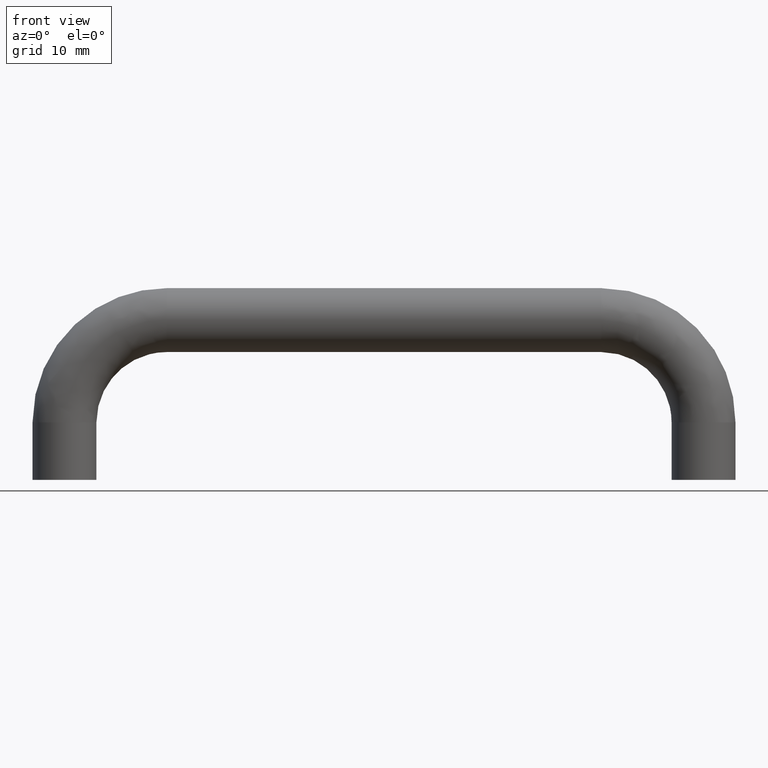
[diagram: clean part render]
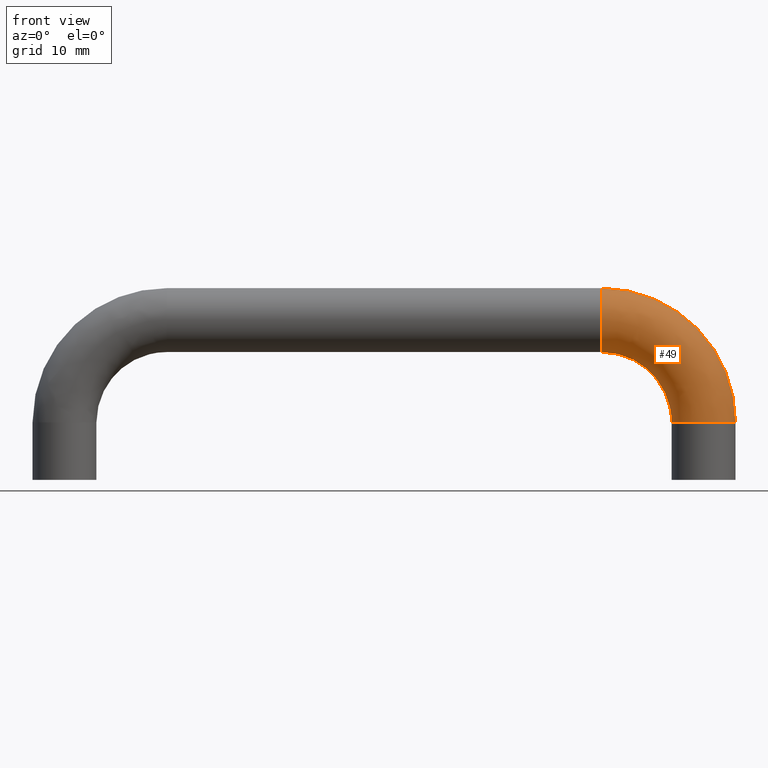
[diagram: same view with one face highlighted and labeled with its STEP entity id]
A machine part, front view. The second image highlights one B-rep face of the part: STEP entity #49.
In plain terms, the highlighted face is a freeform B-spline surface patch.
Its self-contained STEP definition (entity closure, byte-faithful):
#49=ADVANCED_FACE('',(#151),#150,.T.);
#150=( BOUNDED_SURFACE() B_SPLINE_SURFACE( 2,2,((#360,#361,#362,#363,#364,#365,#366),(#367,#368,#369,#370,#371,#372,#373),(#374,#375,#376,#377,#378,#379,#380),(#381,#382,#383,#384,#385,#386,#387),(#388,#389,#390,#391,#392,#393,#394)), .UNSPECIFIED.,.F.,.F.,.F.) B_SPLINE_SURFACE_WITH_KNOTS((3,2,3),(3,2,2,3),(0.00000000000E+00,1.57079632679E+00,3.14159265359E+00),(1.56981901998E+00,1.57079632679E+00,3.14159265359E+00,3.14256996040E+00), .UNSPECIFIED. ) GEOMETRIC_REPRESENTATION_ITEM() RATIONAL_B_SPLINE_SURFACE(((9.99635766346E-01,9.99817769794E-01,1.00000000000E+00,7.07106781187E-01,1.00000000000E+00,9.99817769794E-01,9.99635766346E-01),(7.06849229100E-01,7.06977924972E-01,7.07106781187E-01,5.00000000000E-01,7.07106781187E-01,7.06977924972E-01,7.06849229100E-01),(9.99635766346E-01,9.99817769794E-01,1.00000000000E+00,7.07106781187E-01,1.00000000000E+00,9.99817769794E-01,9.99635766346E-01),(7.06849229100E-01,7.06977924972E-01,7.07106781187E-01,5.00000000000E-01,7.07106781187E-01,7.06977924972E-01,7.06849229100E-01),(9.99635766346E-01,9.99817769794E-01,1.00000000000E+00,7.07106781187E-01,1.00000000000E+00,9.99817769794E-01,9.99635766346E-01))) REPRESENTATION_ITEM('') SURFACE() );
#151=FACE_OUTER_BOUND('',#395,.T.);
#360=CARTESIAN_POINT('',(3.39815190452E+01,-9.33774350974E-11,9.99999186788E+00));
#361=CARTESIAN_POINT('',(3.39907595209E+01,-9.33774350974E-11,9.99999999992E+00));
#362=CARTESIAN_POINT('',(3.40000000001E+01,-9.33774350974E-11,9.99999999992E+00));
#363=CARTESIAN_POINT('',(5.50000000000E+01,-9.33774350974E-11,9.99999999992E+00));
#364=CARTESIAN_POINT('',(5.50000000000E+01,-9.33774350974E-11,-1.10000000000E+01));
#365=CARTESIAN_POINT('',(5.50000000000E+01,-9.33774350974E-11,-1.10092404792E+01));
#366=CARTESIAN_POINT('',(5.49999918680E+01,-9.33774350974E-11,-1.10184809549E+01));
#367=CARTESIAN_POINT('',(3.39815190452E+01,-5.00000000009E+00,9.99999186788E+00));
#368=CARTESIAN_POINT('',(3.39907595209E+01,-5.00000000009E+00,9.99999999992E+00));
#369=CARTESIAN_POINT('',(3.40000000001E+01,-5.00000000009E+00,9.99999999992E+00));
#370=CARTESIAN_POINT('',(5.50000000000E+01,-5.00000000009E+00,9.99999999992E+00));
#371=CARTESIAN_POINT('',(5.50000000000E+01,-5.00000000009E+00,-1.10000000000E+01));
#372=CARTESIAN_POINT('',(5.50000000000E+01,-5.00000000009E+00,-1.10092404792E+01));
#373=CARTESIAN_POINT('',(5.49999918680E+01,-5.00000000009E+00,-1.10184809549E+01));
#374=CARTESIAN_POINT('',(3.39859192726E+01,-5.00000000009E+00,4.99999380408E+00));
#375=CARTESIAN_POINT('',(3.39929596350E+01,-5.00000000009E+00,4.99999999992E+00));
#376=CARTESIAN_POINT('',(3.40000000001E+01,-5.00000000009E+00,4.99999999992E+00));
#377=CARTESIAN_POINT('',(5.00000000000E+01,-5.00000000009E+00,4.99999999992E+00));
#378=CARTESIAN_POINT('',(5.00000000000E+01,-5.00000000009E+00,-1.10000000000E+01));
#379=CARTESIAN_POINT('',(5.00000000000E+01,-5.00000000009E+00,-1.10070403651E+01));
#380=CARTESIAN_POINT('',(4.99999938042E+01,-5.00000000009E+00,-1.10140807275E+01));
#381=CARTESIAN_POINT('',(3.39903194999E+01,-5.00000000009E+00,-4.25972035266E-06));
#382=CARTESIAN_POINT('',(3.39951597491E+01,-5.00000000009E+00,-7.93711755164E-11));
#383=CARTESIAN_POINT('',(3.40000000001E+01,-5.00000000009E+00,-7.93711762981E-11));
#384=CARTESIAN_POINT('',(4.50000000000E+01,-5.00000000009E+00,-7.93729526549E-11));
#385=CARTESIAN_POINT('',(4.50000000000E+01,-5.00000000009E+00,-1.10000000000E+01));
#386=CARTESIAN_POINT('',(4.50000000000E+01,-5.00000000009E+00,-1.10048402510E+01));
#387=CARTESIAN_POINT('',(4.49999957404E+01,-5.00000000009E+00,-1.10096805002E+01));
#388=CARTESIAN_POINT('',(3.39903194999E+01,-9.33780474005E-11,-4.25972035266E-06));
#389=CARTESIAN_POINT('',(3.39951597491E+01,-9.33780474005E-11,-7.93711755164E-11));
#390=CARTESIAN_POINT('',(3.40000000001E+01,-9.33780474005E-11,-7.93711762981E-11));
#391=CARTESIAN_POINT('',(4.50000000000E+01,-9.33780474005E-11,-7.93729526549E-11));
#392=CARTESIAN_POINT('',(4.50000000000E+01,-9.33780474005E-11,-1.10000000000E+01));
#393=CARTESIAN_POINT('',(4.50000000000E+01,-9.33780474005E-11,-1.10048402510E+01));
#394=CARTESIAN_POINT('',(4.49999957404E+01,-9.33780474005E-11,-1.10096805002E+01));
#395=EDGE_LOOP('',(#468,#469,#470,#471));
#468=ORIENTED_EDGE('',*,*,#525,.T.);
#469=ORIENTED_EDGE('',*,*,#527,.T.);
#470=ORIENTED_EDGE('',*,*,#529,.T.);
#471=ORIENTED_EDGE('',*,*,#528,.F.);
#525=EDGE_CURVE('',#663,#662,#682,.T.);
#527=EDGE_CURVE('',#662,#689,#696,.T.);
#528=EDGE_CURVE('',#663,#688,#702,.T.);
#529=EDGE_CURVE('',#689,#688,#708,.T.);
#662=VERTEX_POINT('',#852);
#663=VERTEX_POINT('',#853);
#682=CIRCLE('',#865,5.00000000000E+00);
#688=VERTEX_POINT('',#866);
#689=VERTEX_POINT('',#867);
#696=(BOUNDED_CURVE() B_SPLINE_CURVE(2,(#872,#873,#874),.UNSPECIFIED.,.F.,.F.) B_SPLINE_CURVE_WITH_KNOTS((3,3),(1.57079632679E+00,3.14159265359E+00),.UNSPECIFIED.) CURVE() GEOMETRIC_REPRESENTATION_ITEM() RATIONAL_B_SPLINE_CURVE((1.00000000000E+00,7.07106781187E-01,1.00000000000E+00)) REPRESENTATION_ITEM('') );
#702=(BOUNDED_CURVE() B_SPLINE_CURVE(3,(#875,#876,#877,#878,#879,#880,#881,#882,#883),.UNSPECIFIED.,.F.,.F.) B_SPLINE_CURVE_WITH_KNOTS((4,1,1,1,1,1,4),(1.57079632680E+00,1.84807220328E+00,2.07912984810E+00,2.35619449020E+00,2.63325913230E+00,2.86431677711E+00,3.14159265360E+00),.UNSPECIFIED.) CURVE() GEOMETRIC_REPRESENTATION_ITEM() RATIONAL_B_SPLINE_CURVE((1.00000000000E+00,1.00000000000E+00,1.00000000000E+00,1.00000000000E+00,1.00000000000E+00,1.00000000000E+00,1.00000000000E+00,1.00000000000E+00,1.00000000000E+00)) REPRESENTATION_ITEM('') );
#708=CIRCLE('',#887,5.00000000000E+00);
#852=CARTESIAN_POINT('',(3.40000000000E+01,-9.33376078430E-11,2.43592450410E-32));
#853=CARTESIAN_POINT('',(3.40000000000E+01,-9.33368937694E-11,1.00000000000E+01));
#862=CARTESIAN_POINT('',(3.40000000000E+01,-9.33367966249E-11,5.00000000000E+00));
#863=DIRECTION('',(1.00000000000E+00,0.00000000000E+00,-0.00000000000E+00));
#864=DIRECTION('',(-0.00000000000E+00,-3.97829799999E-17,-1.00000000000E+00));
#865=AXIS2_PLACEMENT_3D('',#862,#863,#864);
#866=CARTESIAN_POINT('',(5.50000000000E+01,-9.33376078430E-11,-1.10000000000E+01));
#867=CARTESIAN_POINT('',(4.50000000000E+01,-9.33368937694E-11,-1.10000000000E+01));
#872=CARTESIAN_POINT('',(3.40000000001E+01,-9.33768227942E-11,-7.93711762981E-11));
#873=CARTESIAN_POINT('',(4.50000000000E+01,-9.33768227942E-11,-7.93729526549E-11));
#874=CARTESIAN_POINT('',(4.50000000000E+01,-9.33768227942E-11,-1.10000000000E+01));
#875=CARTESIAN_POINT('',(3.40000000001E+01,-9.33774350974E-11,9.99999999992E+00));
#876=CARTESIAN_POINT('',(3.59365056684E+01,-9.33774350974E-11,1.00006883910E+01));
#877=CARTESIAN_POINT('',(3.94921764616E+01,-9.33774350974E-11,9.50466741294E+00));
#878=CARTESIAN_POINT('',(4.46060632110E+01,-9.33774350974E-11,7.38852365657E+00));
#879=CARTESIAN_POINT('',(4.90411501765E+01,-9.33774350974E-11,4.04115017628E+00));
#880=CARTESIAN_POINT('',(5.23885236567E+01,-9.33774350974E-11,-3.93936789264E-01));
#881=CARTESIAN_POINT('',(5.45046674131E+01,-9.33774350974E-11,-5.50782353868E+00));
#882=CARTESIAN_POINT('',(5.50006883911E+01,-9.33774350974E-11,-9.06349433181E+00));
#883=CARTESIAN_POINT('',(5.50000000000E+01,-9.33774350974E-11,-1.10000000002E+01));
#884=CARTESIAN_POINT('',(5.00000000000E+01,-9.33367966249E-11,-1.10000000000E+01));
#885=DIRECTION('',(0.00000000000E+00,0.00000000000E+00,1.00000000000E+00));
#886=DIRECTION('',(1.00000000000E+00,-3.97829799999E-17,-0.00000000000E+00));
#887=AXIS2_PLACEMENT_3D('',#884,#885,#886);